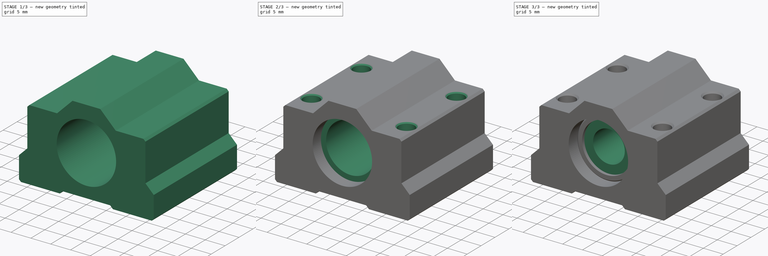
[diagram: build sequence overview — one tinted view per stage of 3, left to right]
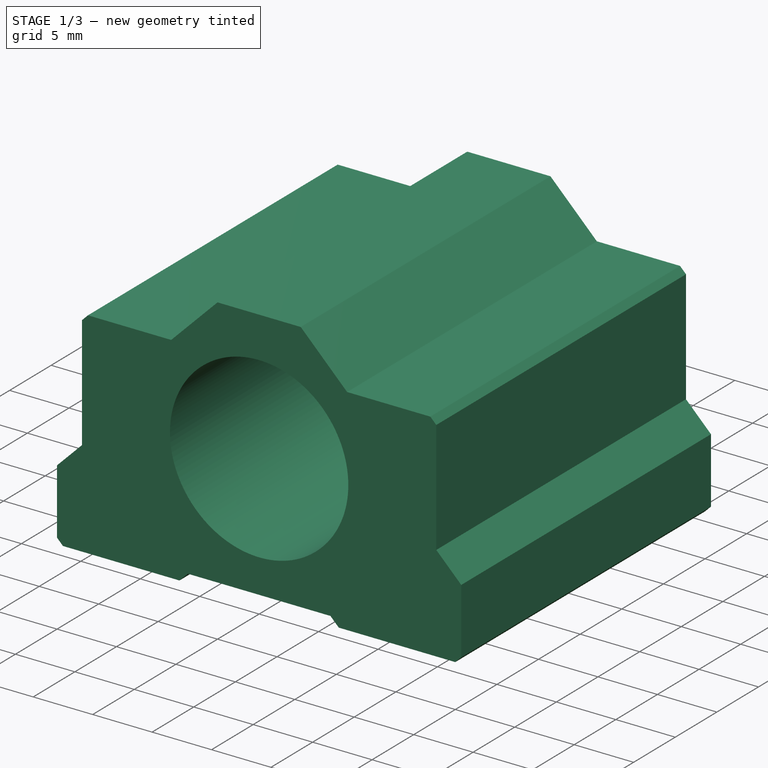
[diagram: stage 1 of 3 — iso view after this stage's code; geometry added in this stage tinted green]
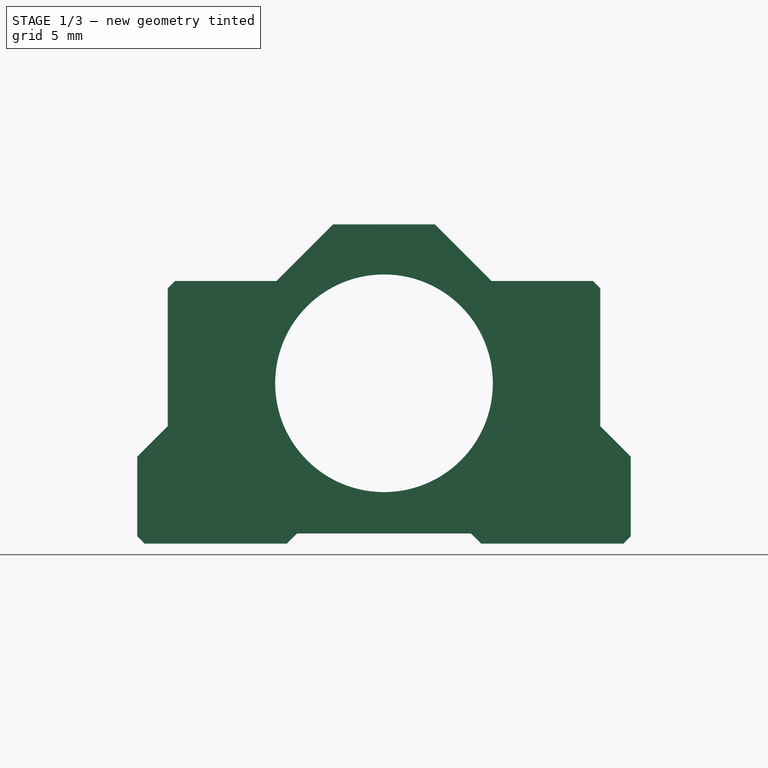
[diagram: stage 1 of 3 — front view after this stage's code; geometry added in this stage tinted green]
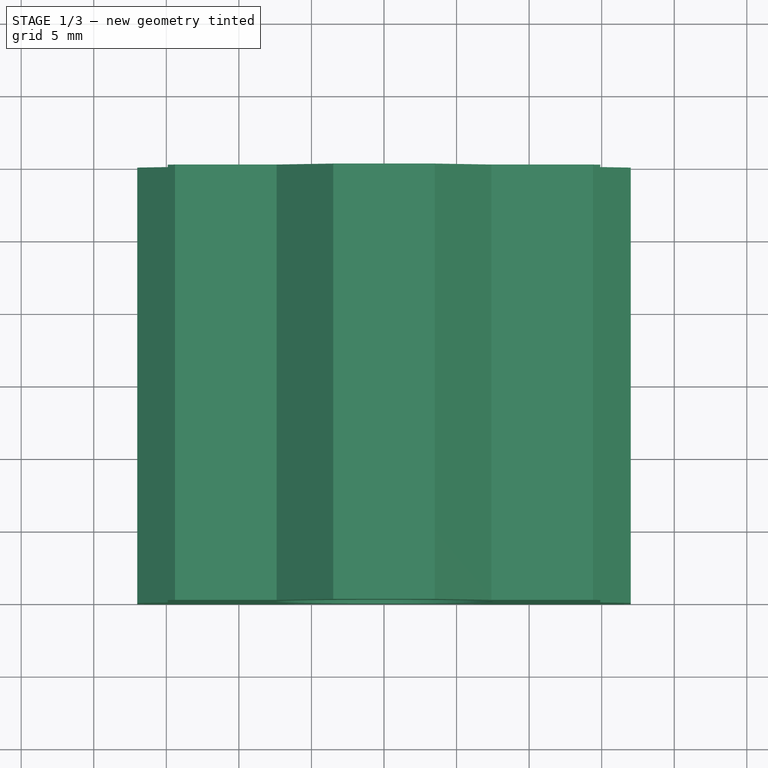
[diagram: stage 1 of 3 — top view after this stage's code; geometry added in this stage tinted green]
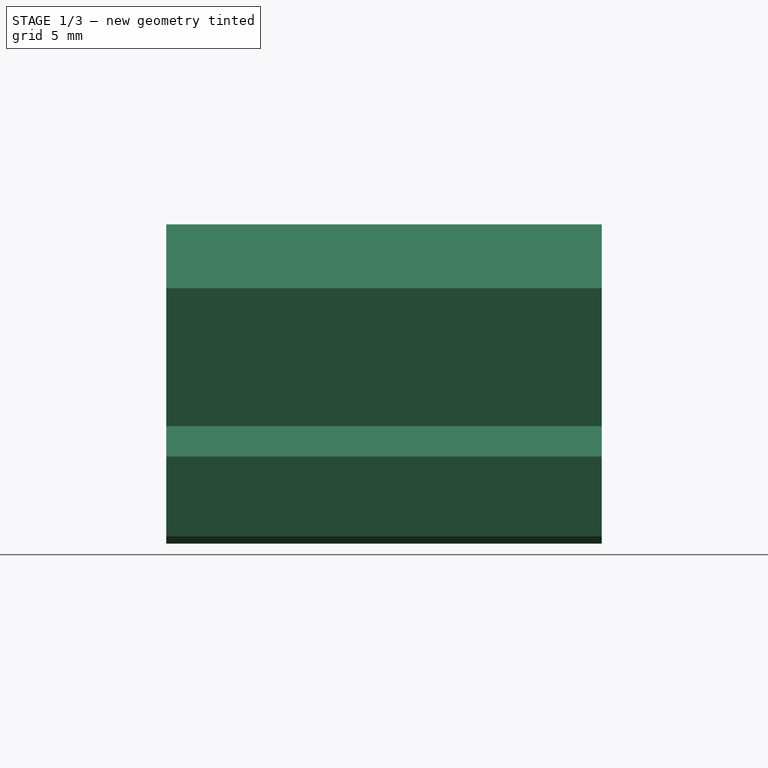
[diagram: stage 1 of 3 — right view after this stage's code; geometry added in this stage tinted green]
FCSTD DOCUMENT  (FreeCAD 2022.111R30764 (Git))
Label: SC8UU
Comment: This model is licensed under CC-BY 4.0.\n\nDon´t forget to share your modifications with the community.
License: Creative Commons Attribution
LicenseURL: http://creativecommons.org/licenses/by/4.0/
objects: Sketcher::SketchObject×4, PartDesign::Body×3, PartDesign::Chamfer×3, PartDesign::Pad×2, PartDesign::Revolution×1, PartDesign::Pocket×1, App::Part×1
note: 28 computed .brp shape members not serialized (recipe doc carries the construction recipe); baked Part::Feature solids carry a one-line shape summary decoded from their .brp

FEATURE [PartDesign::Body] Body001  label="Metal"
  AutoGroupSolids = false
  ExportMode = 0
  Group = -> [Sketch001,Revolution,Chamfer]
  Origin = -> Origin002
  Tip = -> Chamfer
  TreeRank = 0
  _ExportChildren = -> [Revolution,Chamfer]
  _GroupVersion = 1
FEATURE [Sketcher::SketchObject] Sketch002
  FullyConstrained = true
  MapMode = 5
  Placement = pos=(0,0,0) rot=(1,0,0;1.5708rad)
  Support = -> [XZ_Plane003]
  TreeRank = 0
  sketch-geometry (17):
    g0: Circle CenterX=0 CenterY=0 CenterZ=0 NormalX=0 NormalY=0 NormalZ=1 AngleXU=0 Radius=7.5
    g1: LineSegment StartX=-3.5 StartY=10.95 StartZ=0 EndX=3.5 EndY=10.95 EndZ=0
    g2: LineSegment StartX=3.5 StartY=10.95 StartZ=0 EndX=7.4 EndY=7.05 EndZ=0
    g3: LineSegment StartX=7.4 StartY=7.05 StartZ=0 EndX=14.9 EndY=7.05 EndZ=0
    g4: LineSegment StartX=14.9 StartY=7.05 StartZ=0 EndX=14.9 EndY=-2.95 EndZ=0
    g5: LineSegment StartX=14.9 StartY=-2.95 StartZ=0 EndX=17 EndY=-5.05 EndZ=0
    g6: LineSegment StartX=17 StartY=-5.05 StartZ=0 EndX=17 EndY=-11.05 EndZ=0
    g7: LineSegment StartX=17 StartY=-11.05 StartZ=0 EndX=6.7 EndY=-11.05 EndZ=0
    g8: LineSegment StartX=6.7 StartY=-11.05 StartZ=0 EndX=6 EndY=-10.35 EndZ=0
    g9: LineSegment StartX=6 StartY=-10.35 StartZ=0 EndX=-6 EndY=-10.35 EndZ=0
    g10: LineSegment StartX=-6 StartY=-10.35 StartZ=0 EndX=-6.7 EndY=-11.05 EndZ=0
    g11: LineSegment StartX=-6.7 StartY=-11.05 StartZ=0 EndX=-17 EndY=-11.05 EndZ=0
    g12: LineSegment StartX=-17 StartY=-11.05 StartZ=0 EndX=-17 EndY=-5.05 EndZ=0
    g13: LineSegment StartX=-17 StartY=-5.05 StartZ=0 EndX=-14.9 EndY=-2.95 EndZ=0
    g14: LineSegment StartX=-14.9 StartY=-2.95 StartZ=0 EndX=-14.9 EndY=7.05 EndZ=0
    g15: LineSegment StartX=-14.9 StartY=7.05 StartZ=0 EndX=-7.4 EndY=7.05 EndZ=0
    g16: LineSegment StartX=-7.4 StartY=7.05 StartZ=0 EndX=-3.5 EndY=10.95 EndZ=0
  constraints (50):
    c: Coincident(g0,g-1)
    c: Diameter(g0) = 15
    c: Horizontal(g1)
    c: Coincident(g1,g2)
    c: Coincident(g2,g3)
    c: Horizontal(g3)
    c: Coincident(g3,g4)
    c: Vertical(g4)
    c: Coincident(g4,g5)
    c: Coincident(g5,g6)
    c: Vertical(g6)
    c: Coincident(g6,g7)
    c: Horizontal(g7)
    c: Coincident(g7,g8)
    c: Coincident(g8,g9)
    c: Horizontal(g9)
    c: Coincident(g9,g10)
    c: Coincident(g10,g11)
    c: Horizontal(g11)
    c: Coincident(g11,g12)
    c: Coincident(g12,g13)
    c: Coincident(g13,g14)
    c: Vertical(g14)
    c: Coincident(g14,g15)
    c: Horizontal(g15)
    c: Coincident(g15,g16)
    c: Coincident(g16,g1)
    c: Equal(g2,g16)
    c: Equal(g15,g3)
    c: Equal(g4,g14)
    c: Equal(g13,g5)
    c: Equal(g12,g6)
    c: Vertical(g12)
    c: Equal(g11,g7)
    c: Horizontal(g2,g15)
    c: Horizontal(g7,g10)
    c: Equal(g8,g10)
    c: DistanceX(g15,g2) = 14.8
    c: DistanceX(g1,g1) = 7
    c: DistanceX(g0,g1) = 3.5
    c: DistanceY(g11,g1) = 22
    c: DistanceY(g7,g8) = 0.7
    c: DistanceX(g9,g9) = 12
    c: Angle(g3,g2) = 2.35619
    c: Angle(g7,g8) = 2.35619
    c: Parallel(g8,g5)
    c: DistanceY(g6,g6) = 6
    c: DistanceY(g4,g4) = 10
    c: DistanceY(g9,g0) = 10.35
    c: DistanceX(g12,g5) = 34
FEATURE [PartDesign::Pad] Pad001
  AddSubType = 0
  CheckUpToFaceLimits = true
  ClaimChildren = false
  Direction = (0,-1,-2e-16)
  Fit = 0
  FitJoin = 0
  InnerFit = 0
  InnerFitJoin = 0
  InnerTaperAngle = 0
  InnerTaperAngleRev = 0
  Length = 30
  Length2 = 100
  Midplane = true
  NewSolid = false
  Placement = pos=(0,0,0) rot=(1,0,0;1.5708rad)
  Profile = -> Sketch002
  ReferenceAxis = -> Sketch002 [N_Axis]
  Suppress = false
  TreeRank = 0
  Type = 0
  _ProfileBasedVersion = 0
FEATURE [PartDesign::Chamfer] Chamfer001
  AddSubType = 0
  Angle = 45
  Base = -> Pad001 [Edge8,Edge41,Edge32,Edge17]
  BaseFeature = -> Pad001
  ChamferType = 0
  FlipDirection = false
  NewSolid = false
  Placement = pos=(0,0,0) rot=(1,0,0;1.5708rad)
  Size = 0.5
  Size2 = 1
  SupportTransform = false
  Suppress = false
  TreeRank = 0
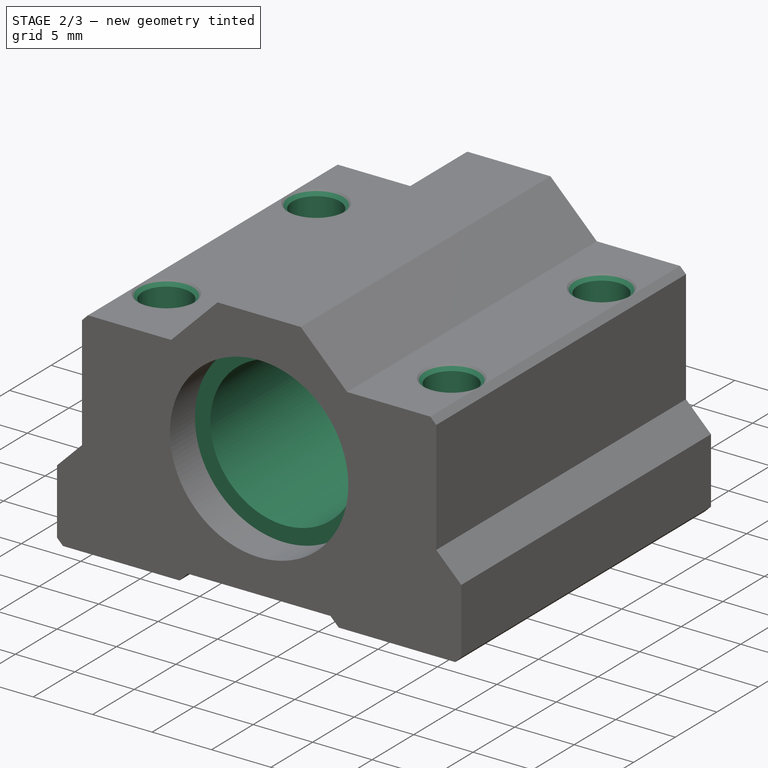
[diagram: stage 2 of 3 — iso view after this stage's code; geometry added in this stage tinted green]
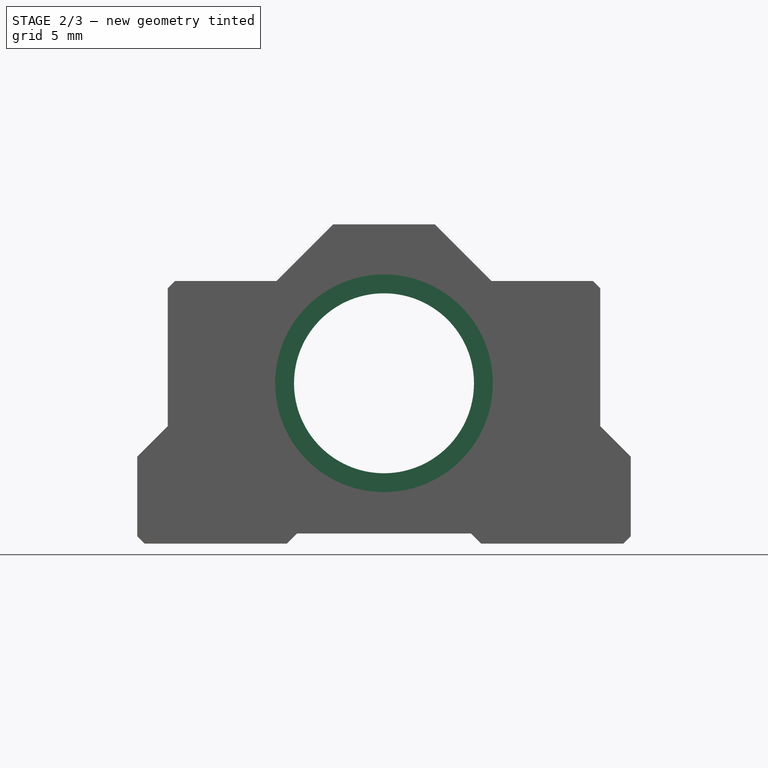
[diagram: stage 2 of 3 — front view after this stage's code; geometry added in this stage tinted green]
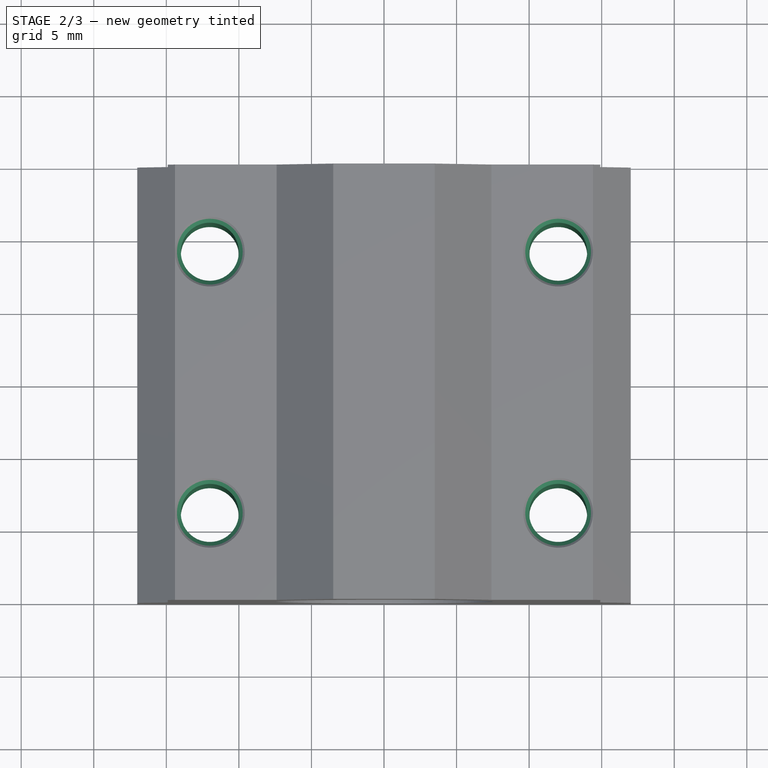
[diagram: stage 2 of 3 — top view after this stage's code; geometry added in this stage tinted green]
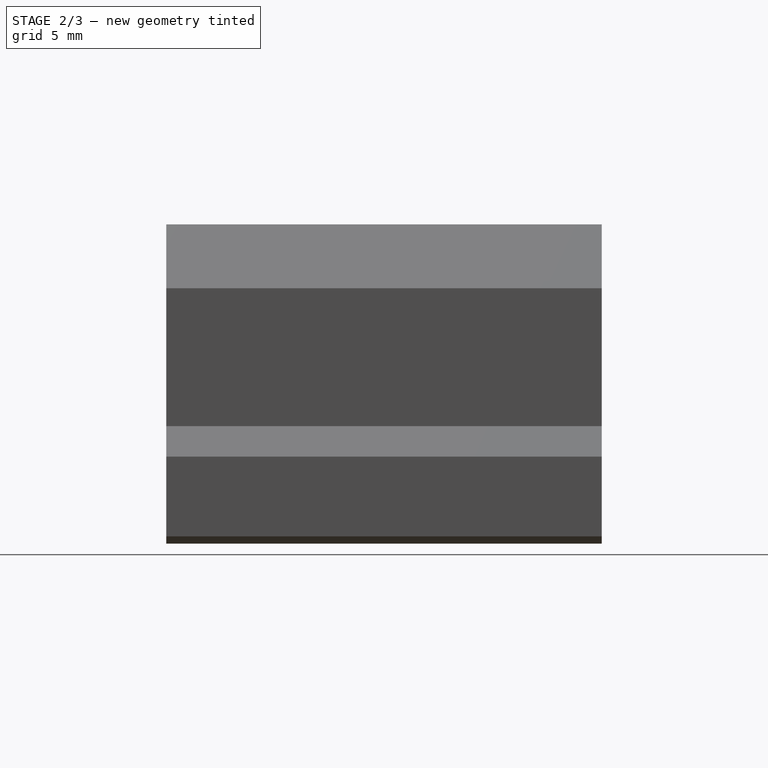
[diagram: stage 2 of 3 — right view after this stage's code; geometry added in this stage tinted green]
FEATURE [PartDesign::Body] Body  label="Center"
  AutoGroupSolids = false
  ExportMode = 0
  Group = -> [Sketch,Pad]
  Origin = -> Origin
  Tip = -> Pad
  TreeRank = 0
  _ExportChildren = -> [Pad]
  _GroupVersion = 1
FEATURE [Sketcher::SketchObject] Sketch001
  FullyConstrained = true
  MapMode = 5
  Support = -> [XY_Plane002]
  TreeRank = 0
  sketch-geometry (12):
    g0: LineSegment StartX=6.2 StartY=12 StartZ=0 EndX=6.2 EndY=-12 EndZ=0
    g1: LineSegment StartX=6.2 StartY=-12 StartZ=0 EndX=7.5 EndY=-12 EndZ=0
    g2: LineSegment StartX=7.5 StartY=-12 StartZ=0 EndX=7.5 EndY=-8.8 EndZ=0
    g3: LineSegment StartX=7.5 StartY=-8.8 StartZ=0 EndX=6.7 EndY=-8.8 EndZ=0
    g4: LineSegment StartX=6.7 StartY=-8.8 StartZ=0 EndX=6.7 EndY=-7.6 EndZ=0
    g5: LineSegment StartX=6.7 StartY=-7.6 StartZ=0 EndX=7.5 EndY=-7.6 EndZ=0
    g6: LineSegment StartX=7.5 StartY=-7.6 StartZ=0 EndX=7.5 EndY=7.6 EndZ=0
    g7: LineSegment StartX=7.5 StartY=7.6 StartZ=0 EndX=6.7 EndY=7.6 EndZ=0
    g8: LineSegment StartX=6.7 StartY=7.6 StartZ=0 EndX=6.7 EndY=8.8 EndZ=0
    g9: LineSegment StartX=6.7 StartY=8.8 StartZ=0 EndX=7.5 EndY=8.8 EndZ=0
    g10: LineSegment StartX=7.5 StartY=8.8 StartZ=0 EndX=7.5 EndY=12 EndZ=0
    g11: LineSegment StartX=7.5 StartY=12 StartZ=0 EndX=6.2 EndY=12 EndZ=0
  constraints (36):
    c: Vertical(g0)
    c: Coincident(g0,g1)
    c: Horizontal(g1)
    c: Coincident(g1,g2)
    c: Vertical(g2)
    c: Coincident(g2,g3)
    c: Horizontal(g3)
    c: Coincident(g3,g4)
    c: Vertical(g4)
    c: Coincident(g4,g5)
    c: Horizontal(g5)
    c: Coincident(g5,g6)
    c: Vertical(g6)
    c: Coincident(g6,g7)
    c: Horizontal(g7)
    c: Coincident(g7,g8)
    c: Vertical(g8)
    c: Coincident(g8,g9)
    c: Coincident(g9,g10)
    c: Vertical(g10)
    c: Coincident(g10,g11)
    c: Coincident(g11,g0)
    c: Horizontal(g11)
    c: Equal(g5,g7)
    c: Equal(g8,g4)
    c: Horizontal(g9)
    c: Vertical(g5,g2)
    c: Vertical(g6,g9)
    c: DistanceX(g-1,g0) = 6.2
    c: DistanceX(g11,g11) = 1.3
    c: DistanceY(g8,g8) = 1.2
    c: Equal(g2,g10)
    c: DistanceY(g0,g0) = 24
    c: DistanceY(g0,g-1) = 12
    c: DistanceY(g6,g6) = 15.2
    c: DistanceX(g9,g9) = 0.8
FEATURE [PartDesign::Revolution] Revolution
  AddSubType = 0
  Angle = 360
  Axis = (0,1,0)
  Base = (0,0,0)
  ClaimChildren = false
  Fit = 0
  FitJoin = 0
  InnerFit = 0
  InnerFitJoin = 0
  NewSolid = false
  Profile = -> Sketch001
  ReferenceAxis = -> Sketch001 [V_Axis]
  Reversed = true
  Suppress = false
  TreeRank = 0
  _ProfileBasedVersion = 0
FEATURE [Sketcher::SketchObject] Sketch003
  ExternalGeometry = -> [Chamfer001]
  FullyConstrained = true
  MapMode = 5
  Placement = pos=(0,2.5e-15,-11.05) rot=(1,0,0;3.14159rad)
  Support = -> [Chamfer001]
  TreeRank = 0
  sketch-geometry (9):
    g0: LineSegment [constr] StartX=12 StartY=9 StartZ=0 EndX=12 EndY=-9 EndZ=0
    g1: LineSegment [constr] StartX=12 StartY=-9 StartZ=0 EndX=-12 EndY=-9 EndZ=0
    g2: LineSegment [constr] StartX=-12 StartY=-9 StartZ=0 EndX=-12 EndY=9 EndZ=0
    g3: LineSegment [constr] StartX=-12 StartY=9 StartZ=0 EndX=12 EndY=9 EndZ=0
    g4: GeomPoint [constr] X=0 Y=0 Z=0
    g5: Circle CenterX=-12 CenterY=9 CenterZ=0 NormalX=0 NormalY=0 NormalZ=1 AngleXU=0 Radius=2
    g6: Circle CenterX=-12 CenterY=-9 CenterZ=0 NormalX=0 NormalY=0 NormalZ=1 AngleXU=0 Radius=2
    g7: Circle CenterX=12 CenterY=-9 CenterZ=0 NormalX=0 NormalY=0 NormalZ=1 AngleXU=0 Radius=2
    g8: Circle CenterX=12 CenterY=9 CenterZ=0 NormalX=0 NormalY=0 NormalZ=1 AngleXU=0 Radius=2
  constraints (21):
    c: Coincident(g0,g1)
    c: Coincident(g1,g2)
    c: Coincident(g2,g3)
    c: Coincident(g3,g0)
    c: Horizontal(g1)
    c: Horizontal(g3)
    c: Vertical(g0)
    c: Vertical(g2)
    c: Symmetric(g1,g0,g4)
    c: Coincident(g4,g-1)
    c: Coincident(g5,g2)
    c: Coincident(g6,g1)
    c: Coincident(g7,g0)
    c: Coincident(g8,g0)
    c: Equal(g7,g6)
    c: Equal(g6,g5)
    c: Equal(g5,g8)
    c: Diameter(g8) = 4
    c: DistanceY(g0,g0) = 18
    c: DistanceX(g3,g3) = 24
    c: DistanceX(g-3,g-4) = 34
FEATURE [PartDesign::Pocket] Pocket
  AddSubType = 1
  BaseFeature = -> Chamfer001
  CheckUpToFaceLimits = true
  ClaimChildren = false
  Fit = 0
  FitJoin = 0
  InnerFit = 0
  InnerFitJoin = 0
  InnerTaperAngle = 0
  InnerTaperAngleRev = 0
  Length = 5
  Length2 = 100
  NewSolid = false
  Placement = pos=(0,0,0) rot=(1,0,0;1.5708rad)
  Profile = -> Sketch003
  Suppress = false
  TreeRank = 0
  Type = 1
  _ProfileBasedVersion = 0
  _Version = 0
FEATURE [PartDesign::Chamfer] Chamfer002
  AddSubType = 0
  Angle = 45
  Base = -> Pocket [Face7,Face27,Face26,Face6]
  BaseFeature = -> Pocket
  ChamferType = 0
  FlipDirection = false
  NewSolid = false
  Placement = pos=(0,0,0) rot=(1,0,0;1.5708rad)
  Size = 0.4
  Size2 = 1
  SupportTransform = false
  Suppress = false
  TreeRank = 0
FEATURE [PartDesign::Body] Body002  label="Case"
  AutoGroupSolids = false
  ExportMode = 0
  Group = -> [Sketch002,Pad001,Chamfer001,Sketch003,Pocket,Chamfer002]
  Origin = -> Origin003
  Tip = -> Chamfer002
  TreeRank = 0
  _ExportChildren = -> [Pad001,Chamfer001,Pocket,Chamfer002]
  _GroupVersion = 1
FEATURE [App::Part] Part  label="SC8UU"
  ExportMode = 1
  Group = -> [Body,Body001,Body002]
  Origin = -> Origin001
  TreeRank = 0
  _ExportChildren = -> [Body,Body001,Body002]
  _GroupVersion = 1
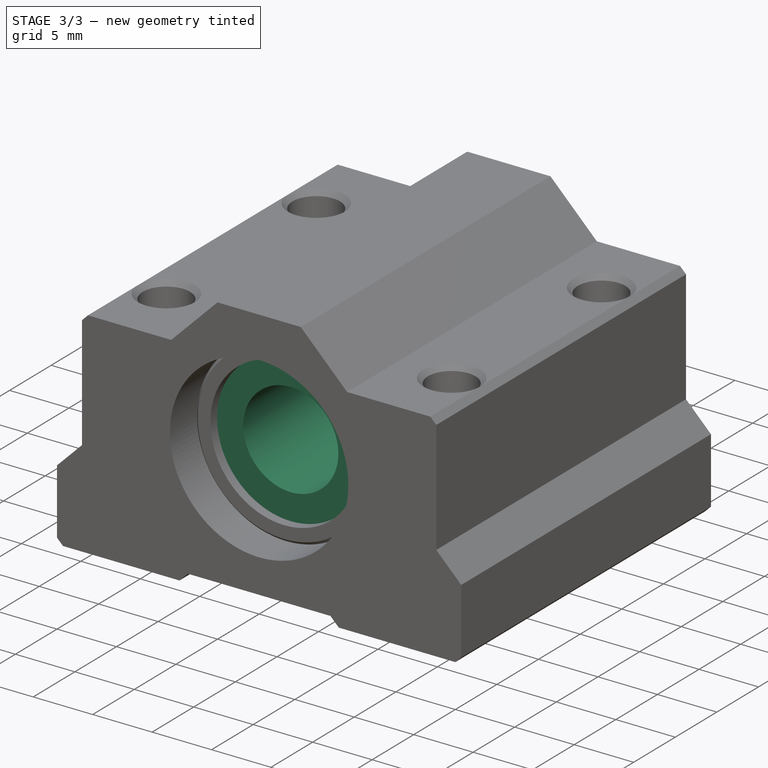
[diagram: stage 3 of 3 — iso view after this stage's code; geometry added in this stage tinted green]
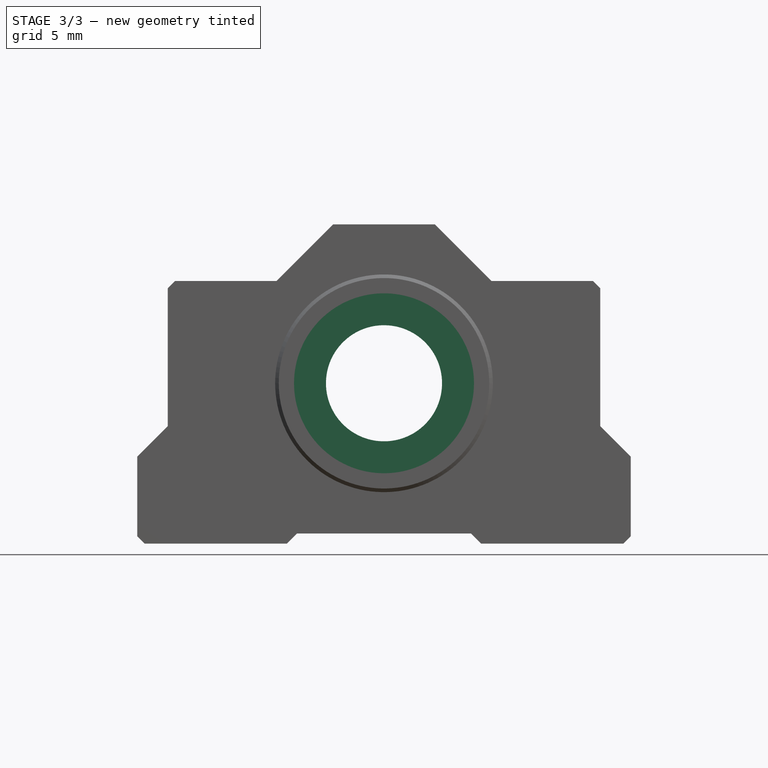
[diagram: stage 3 of 3 — front view after this stage's code; geometry added in this stage tinted green]
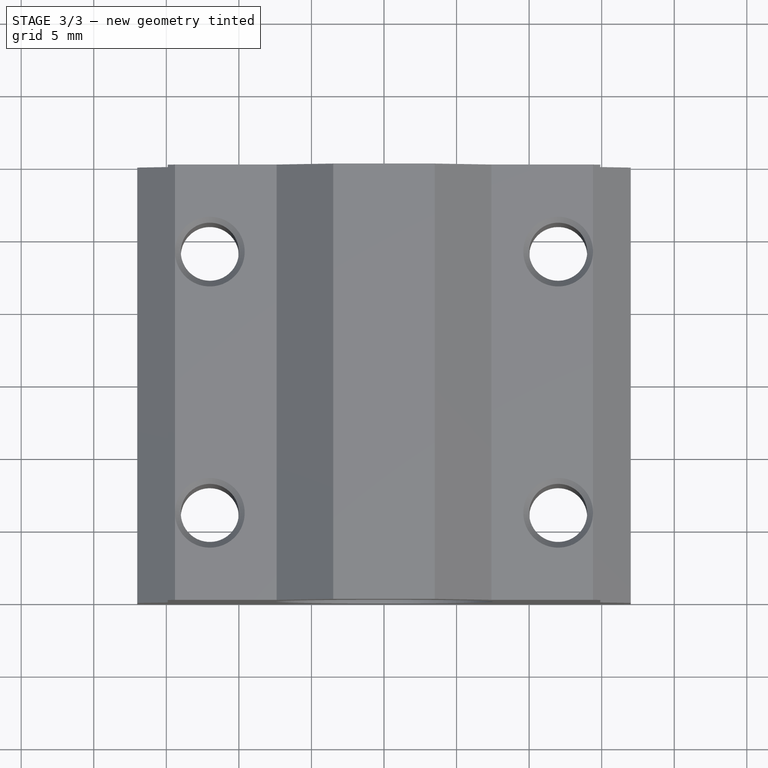
[diagram: stage 3 of 3 — top view after this stage's code; geometry added in this stage tinted green]
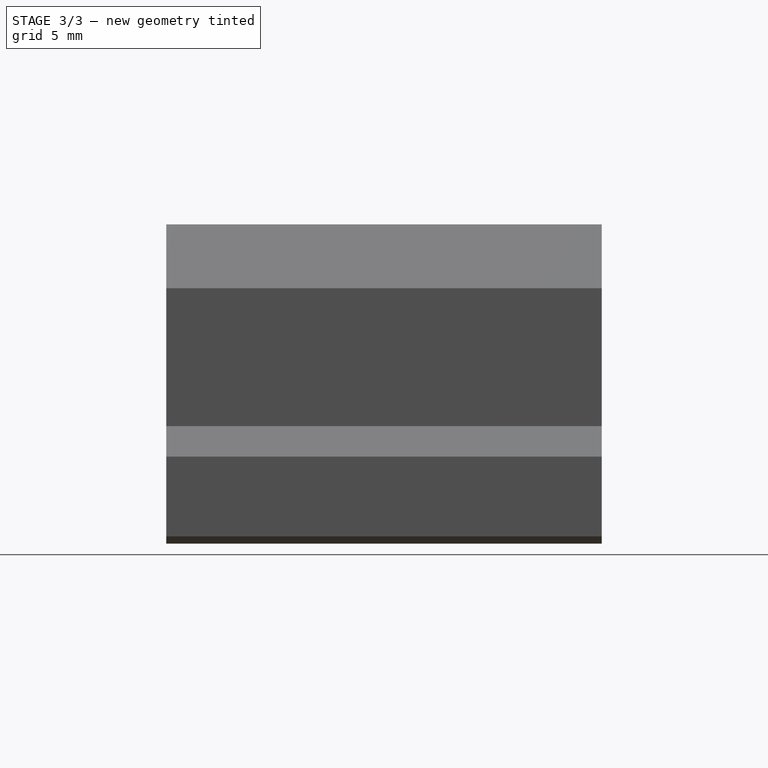
[diagram: stage 3 of 3 — right view after this stage's code; geometry added in this stage tinted green]
FEATURE [Sketcher::SketchObject] Sketch
  FullyConstrained = true
  MapMode = 5
  Placement = pos=(0,0,0) rot=(1,0,0;1.5708rad)
  Support = -> [XZ_Plane]
  TreeRank = 0
  sketch-geometry (2):
    g0: Circle CenterX=0 CenterY=0 CenterZ=0 NormalX=0 NormalY=0 NormalZ=1 AngleXU=0 Radius=4
    g1: Circle CenterX=0 CenterY=0 CenterZ=0 NormalX=0 NormalY=0 NormalZ=1 AngleXU=0 Radius=6.2
  constraints (4):
    c: Coincident(g0,g-1)
    c: Coincident(g1,g0)
    c: Diameter(g0) = 8
    c: Diameter(g1) = 12.4
FEATURE [PartDesign::Pad] Pad
  AddSubType = 0
  CheckUpToFaceLimits = true
  ClaimChildren = false
  Direction = (0,-1,-2e-16)
  Fit = 0
  FitJoin = 0
  InnerFit = 0
  InnerFitJoin = 0
  InnerTaperAngle = 0
  InnerTaperAngleRev = 0
  Length = 22.4
  Length2 = 100
  Midplane = true
  NewSolid = false
  Placement = pos=(0,0,0) rot=(1,0,0;1.5708rad)
  Profile = -> Sketch
  ReferenceAxis = -> Sketch [N_Axis]
  Suppress = false
  TreeRank = 0
  Type = 0
  _ProfileBasedVersion = 0
FEATURE [PartDesign::Chamfer] Chamfer
  AddSubType = 0
  Angle = 45
  Base = -> Revolution [Edge4,Edge17]
  BaseFeature = -> Revolution
  ChamferType = 0
  FlipDirection = false
  NewSolid = false
  Size = 0.25
  Size2 = 1
  SupportTransform = false
  Suppress = false
  TreeRank = 0
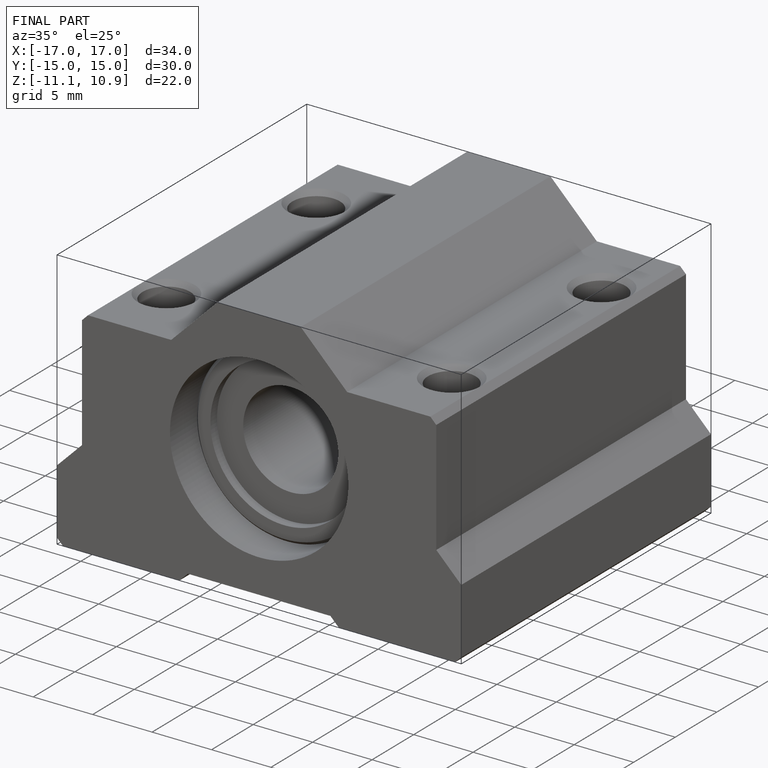
[diagram: finished part — iso view with bounding-box wireframe]
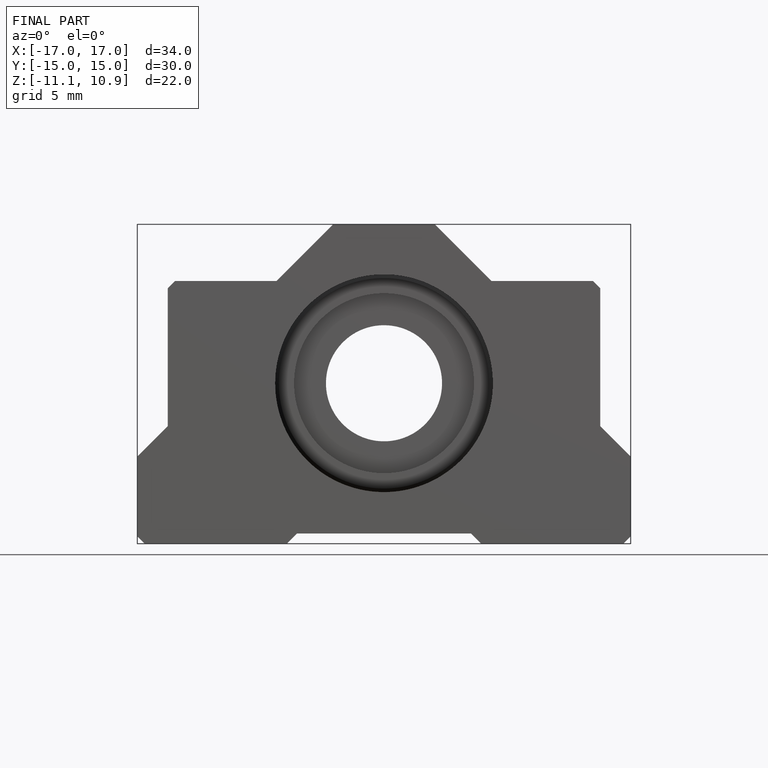
[diagram: finished part — front view with bounding-box wireframe]
